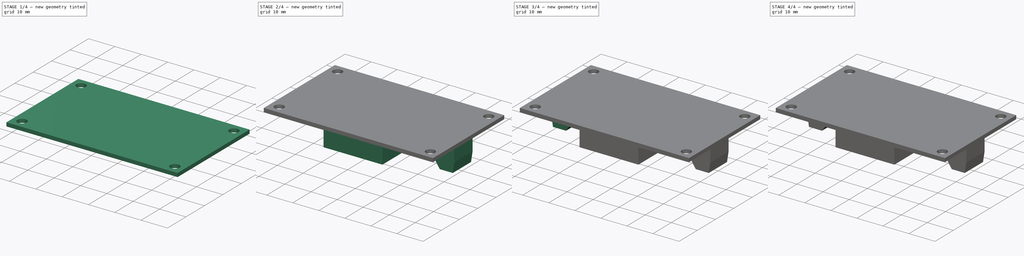
[diagram: build sequence overview — one tinted view per stage of 4, left to right]
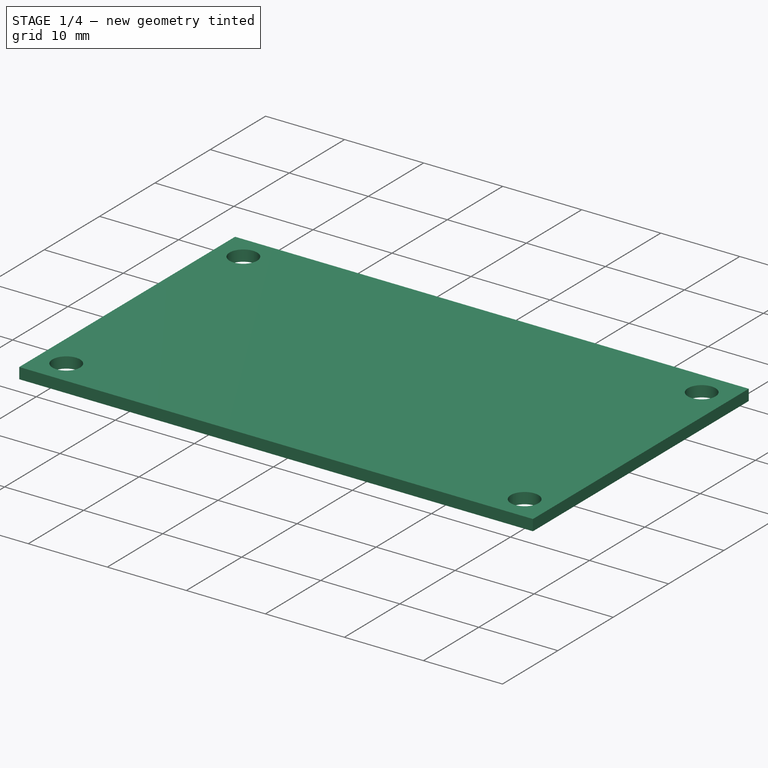
[diagram: stage 1 of 4 — iso view after this stage's code; geometry added in this stage tinted green]
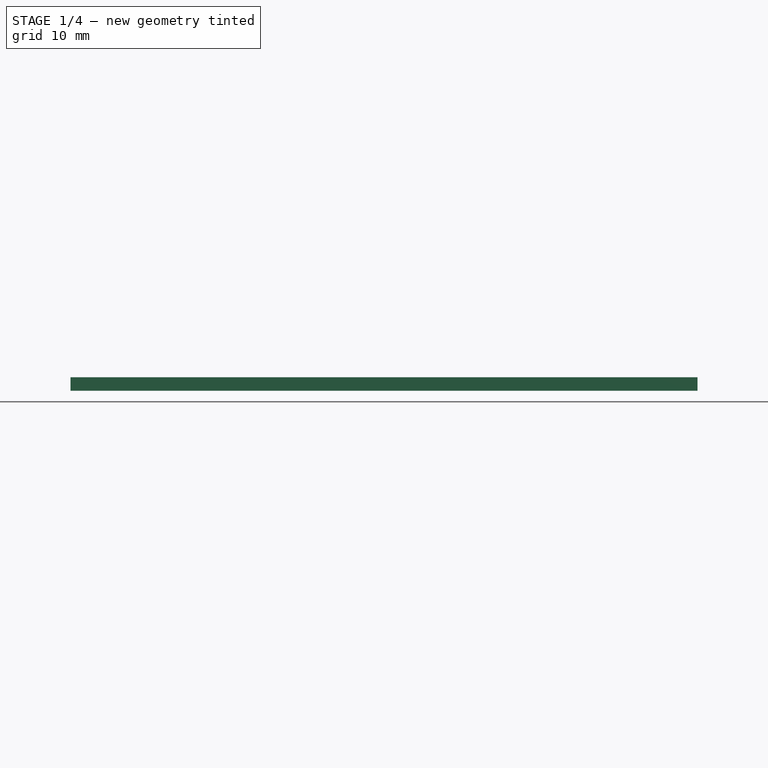
[diagram: stage 1 of 4 — front view after this stage's code; geometry added in this stage tinted green]
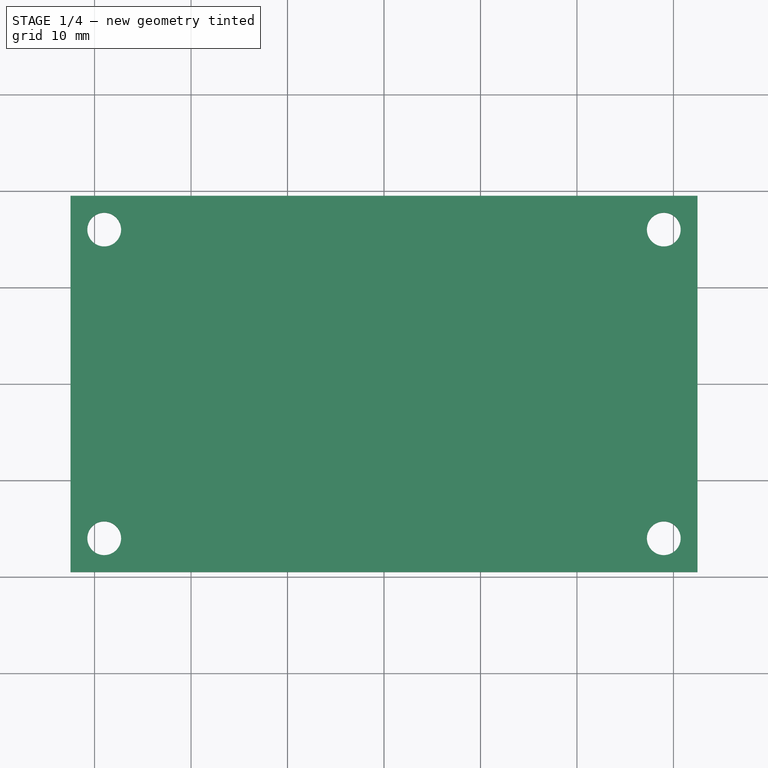
[diagram: stage 1 of 4 — top view after this stage's code; geometry added in this stage tinted green]
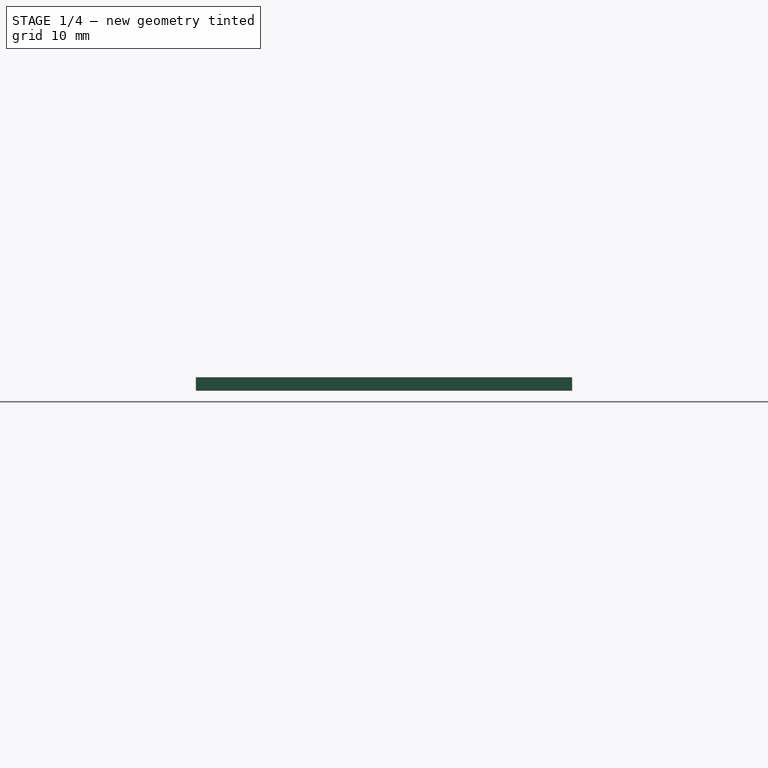
[diagram: stage 1 of 4 — right view after this stage's code; geometry added in this stage tinted green]
FCSTD DOCUMENT  (FreeCAD 0.20R29603 (Git))
Label: converter
License: All rights reserved
LicenseURL: http://en.wikipedia.org/wiki/All_rights_reserved
objects: Sketcher::SketchObject×9, PartDesign::Pad×7, PartDesign::Mirrored×3, PartDesign::Pocket×2, PartDesign::MultiTransform×1, PartDesign::Body×1
note: 32 computed .brp shape members not serialized (recipe doc carries the construction recipe); baked Part::Feature solids carry a one-line shape summary decoded from their .brp

FEATURE [Sketcher::SketchObject] Sketch
  FullyConstrained = true
  MapMode = 5
  Support = -> [XY_Plane]
  sketch-geometry (5):
    g0: LineSegment StartX=-32.5 StartY=-19.5 StartZ=0 EndX=-32.5 EndY=19.5 EndZ=0
    g1: LineSegment StartX=-32.5 StartY=19.5 StartZ=0 EndX=32.5 EndY=19.5 EndZ=0
    g2: LineSegment StartX=32.5 StartY=19.5 StartZ=0 EndX=32.5 EndY=-19.5 EndZ=0
    g3: LineSegment StartX=32.5 StartY=-19.5 StartZ=0 EndX=-32.5 EndY=-19.5 EndZ=0
    g4: GeomPoint X=0 Y=0 Z=0
  constraints (12):
    c: Coincident(g0,g1)
    c: Coincident(g1,g2)
    c: Coincident(g2,g3)
    c: Coincident(g3,g0)
    c: Horizontal(g1)
    c: Horizontal(g3)
    c: Vertical(g0)
    c: Vertical(g2)
    c: Symmetric(g1,g0,g4)
    c: Coincident(g4,g-1)
    c: DistanceY(g2,g2) = 39
    c: DistanceX(g1,g1) = 65
FEATURE [PartDesign::Pad] Pad
  Direction = (0,0,1)
  Length = 1.4
  Length2 = 10
  Profile = -> Sketch
  ReferenceAxis = -> Sketch [N_Axis]
  Type = 0
FEATURE [Sketcher::SketchObject] Sketch001
  FullyConstrained = true
  MapMode = 5
  Support = -> [XY_Plane]
  sketch-geometry (1):
    g0: Circle CenterX=29 CenterY=16 CenterZ=0 NormalX=0 NormalY=0 NormalZ=1 AngleXU=0 Radius=1.75
  constraints (3):
    c: DistanceY(g-1,g0) = 16
    c: DistanceX(g-1,g0) = 29
    c: Diameter(g0) = 3.5
FEATURE [PartDesign::Pocket] Pocket
  BaseFeature = -> Pad
  Direction = (0,0,-1)
  Length = 1
  Length2 = 5
  Profile = -> Sketch001
  ReferenceAxis = -> Sketch001 [N_Axis]
  Reversed = true
  Type = 1
FEATURE [PartDesign::Mirrored] Mirrored
  MirrorPlane = -> Sketch001 [V_Axis]
FEATURE [PartDesign::Mirrored] Mirrored001
  MirrorPlane = -> Sketch001 [H_Axis]
FEATURE [PartDesign::MultiTransform] MultiTransform
  BaseFeature = -> Pocket
  Originals = -> [Pocket]
  Transformations = -> [Mirrored,Mirrored001]
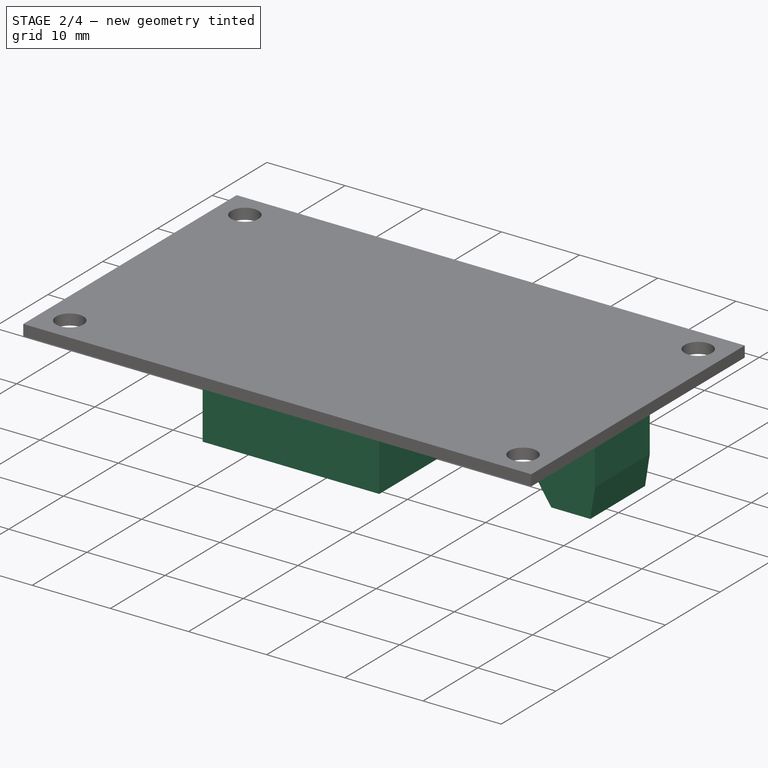
[diagram: stage 2 of 4 — iso view after this stage's code; geometry added in this stage tinted green]
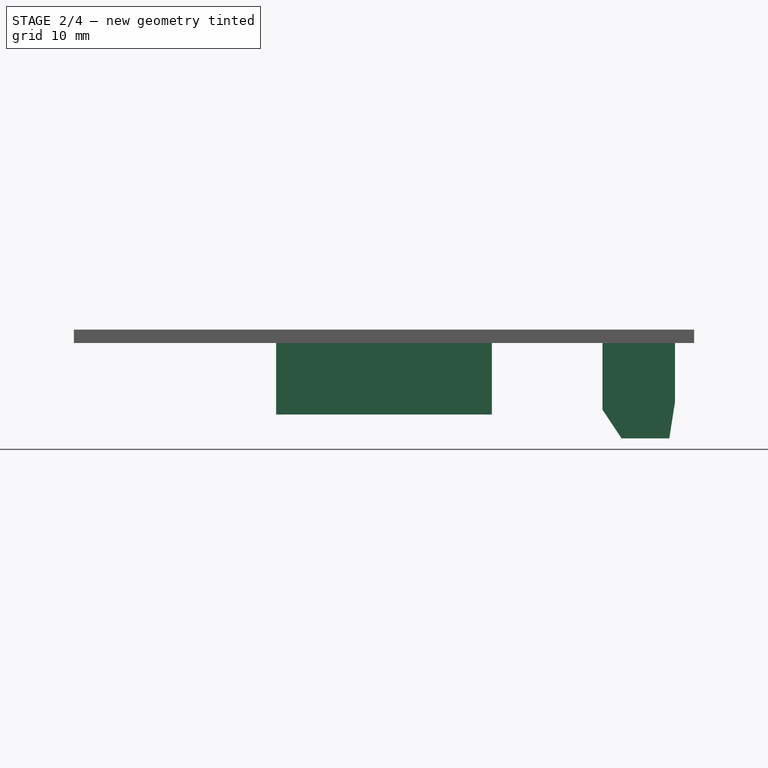
[diagram: stage 2 of 4 — front view after this stage's code; geometry added in this stage tinted green]
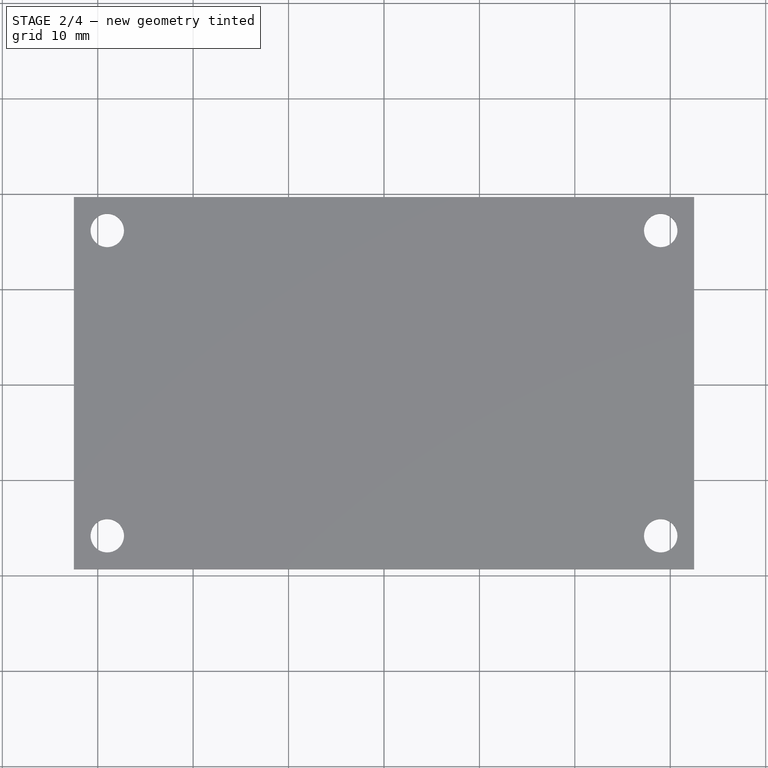
[diagram: stage 2 of 4 — top view after this stage's code; geometry added in this stage tinted green]
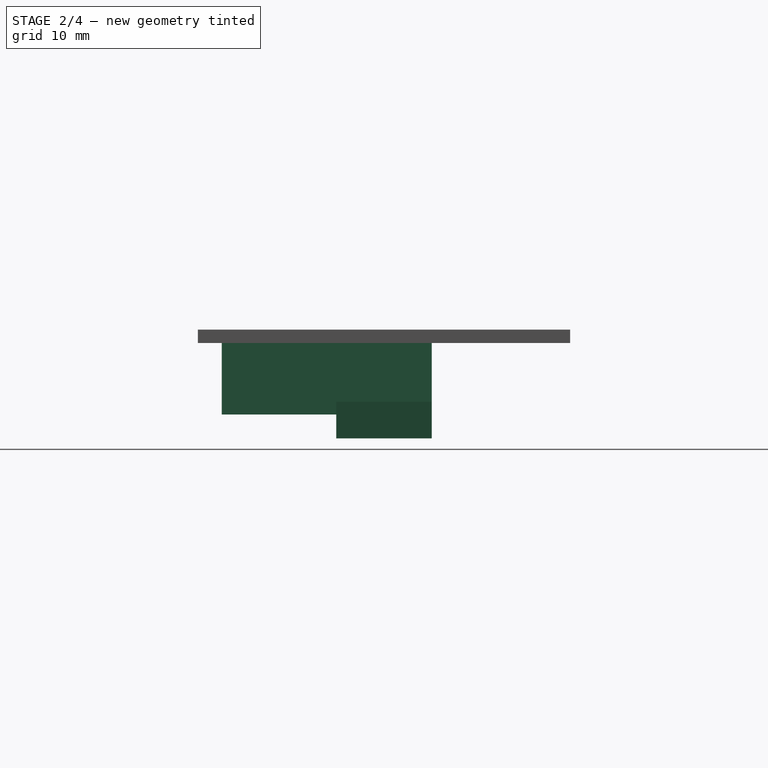
[diagram: stage 2 of 4 — right view after this stage's code; geometry added in this stage tinted green]
FEATURE [Sketcher::SketchObject] Sketch002
  FullyConstrained = true
  MapMode = 5
  Placement = pos=(0,0,0) rot=(0,1,0;3.14159rad)
  Support = -> [XY_Plane]
  sketch-geometry (5):
    g0: LineSegment StartX=-30.5 StartY=-5 StartZ=0 EndX=-30.5 EndY=5 EndZ=0
    g1: LineSegment StartX=-30.5 StartY=5 StartZ=0 EndX=-22.9 EndY=5 EndZ=0
    g2: LineSegment StartX=-22.9 StartY=5 StartZ=0 EndX=-22.9 EndY=-5 EndZ=0
    g3: LineSegment StartX=-22.9 StartY=-5 StartZ=0 EndX=-30.5 EndY=-5 EndZ=0
    g4: GeomPoint X=-26.7 Y=0 Z=0
  constraints (13):
    c: Coincident(g0,g1)
    c: Coincident(g1,g2)
    c: Coincident(g2,g3)
    c: Coincident(g3,g0)
    c: Horizontal(g1)
    c: Horizontal(g3)
    c: Vertical(g0)
    c: Vertical(g2)
    c: Symmetric(g1,g0,g4)
    c: PointOnObject(g4,g-1)
    c: DistanceY(g2,g2) = 10
    c: DistanceX(g1,g1) = 7.6
    c: DistanceX(g0,g-1) = 30.5
FEATURE [PartDesign::Pad] Pad001
  BaseFeature = -> MultiTransform
  Direction = (0,0,-1)
  Length = 10
  Length2 = 10
  Profile = -> Sketch002
  ReferenceAxis = -> Sketch002 [N_Axis]
  Type = 0
FEATURE [Sketcher::SketchObject] Sketch003
  FullyConstrained = false
  MapMode = 5
  Placement = pos=(0,0,0) rot=(1,0,0;1.5708rad)
  Support = -> [XZ_Plane]
  sketch-geometry (7):
    g0: LineSegment StartX=22.9 StartY=-7 StartZ=0 EndX=24.9 EndY=-10 EndZ=0
    g1: LineSegment StartX=22.9 StartY=-7 StartZ=0 EndX=22.9 EndY=-10 EndZ=0
    g2: LineSegment StartX=22.9 StartY=-10 StartZ=0 EndX=24.9 EndY=-10 EndZ=0
    g3: LineSegment StartX=24.9 StartY=-10 StartZ=0 EndX=29.9 EndY=-10 EndZ=0
    g4: LineSegment StartX=29.9 StartY=-10 StartZ=0 EndX=30.5 EndY=-6.15939 EndZ=0
    g5: LineSegment StartX=30.5 StartY=-6.15939 StartZ=0 EndX=30.5 EndY=-10 EndZ=0
    g6: LineSegment StartX=30.5 StartY=-10 StartZ=0 EndX=29.9 EndY=-10 EndZ=0
  constraints (19):
    c: DistanceY(g0,g0) = 3
    c: Coincident(g1,g0)
    c: Vertical(g1)
    c: Coincident(g2,g1)
    c: Coincident(g2,g0)
    c: Horizontal(g2)
    c: DistanceY(g1,g-1) = 10
    c: Coincident(g3,g0)
    c: Horizontal(g3)
    c: DistanceX(g3,g3) = 5
    c: DistanceX(g2,g2) = 2
    c: DistanceX(g-1,g1) = 22.9
    c: Coincident(g4,g3)
    c: Coincident(g5,g4)
    c: Vertical(g5)
    c: Coincident(g6,g5)
    c: Coincident(g6,g4)
    c: Horizontal(g6)
    c: DistanceX(g1,g5) = 7.6
FEATURE [PartDesign::Pocket] Pocket001
  BaseFeature = -> Pad001
  Direction = (0,1,2e-16)
  Length = 10
  Length2 = 5
  Midplane = true
  Profile = -> Sketch003
  ReferenceAxis = -> Sketch003 [N_Axis]
  Type = 0
FEATURE [Sketcher::SketchObject] Sketch004
  FullyConstrained = true
  MapMode = 5
  Placement = pos=(0,0,0) rot=(0,1,0;3.14159rad)
  Support = -> [XY_Plane]
  sketch-geometry (5):
    g0: LineSegment StartX=-11.3 StartY=-3 StartZ=0 EndX=-11.3 EndY=-17 EndZ=0
    g1: LineSegment StartX=-11.3 StartY=-17 StartZ=0 EndX=11.3 EndY=-17 EndZ=0
    g2: LineSegment StartX=11.3 StartY=-17 StartZ=0 EndX=11.3 EndY=-3 EndZ=0
    g3: LineSegment StartX=11.3 StartY=-3 StartZ=0 EndX=-11.3 EndY=-3 EndZ=0
    g4: GeomPoint X=0 Y=-10 Z=0
  constraints (13):
    c: Coincident(g0,g1)
    c: Coincident(g1,g2)
    c: Coincident(g2,g3)
    c: Coincident(g3,g0)
    c: Horizontal(g1)
    c: Horizontal(g3)
    c: Vertical(g0)
    c: Vertical(g2)
    c: Symmetric(g1,g0,g4)
    c: PointOnObject(g4,g-2)
    c: DistanceX(g3,g3) = 22.6
    c: DistanceY(g0,g0) = 14
    c: DistanceY(g1,g-1) = 17
FEATURE [PartDesign::Pad] Pad002
  BaseFeature = -> Pocket001
  Direction = (0,0,-1)
  Length = 7.5
  Length2 = 10
  Profile = -> Sketch004
  ReferenceAxis = -> Sketch004 [N_Axis]
  Type = 0
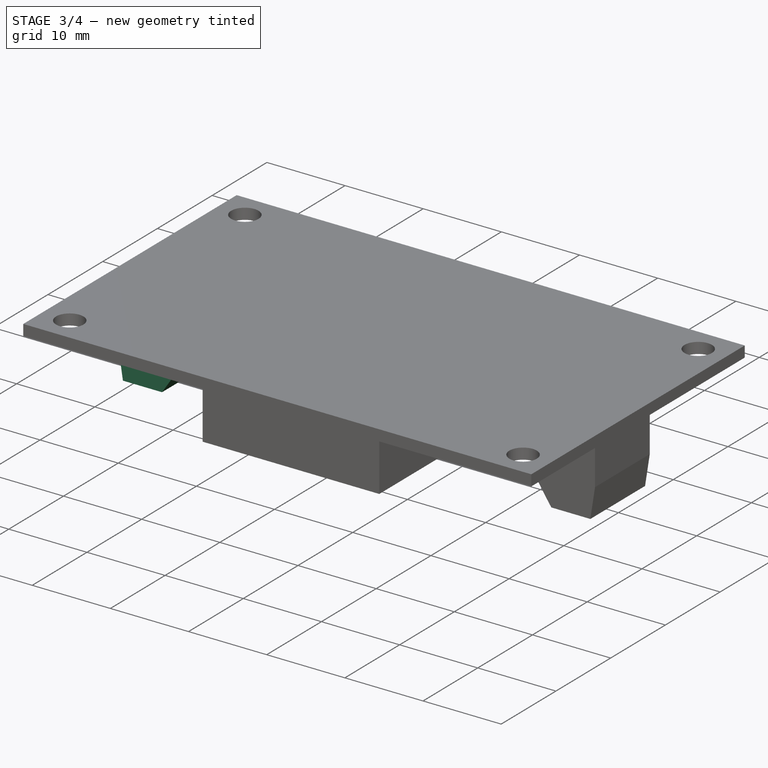
[diagram: stage 3 of 4 — iso view after this stage's code; geometry added in this stage tinted green]
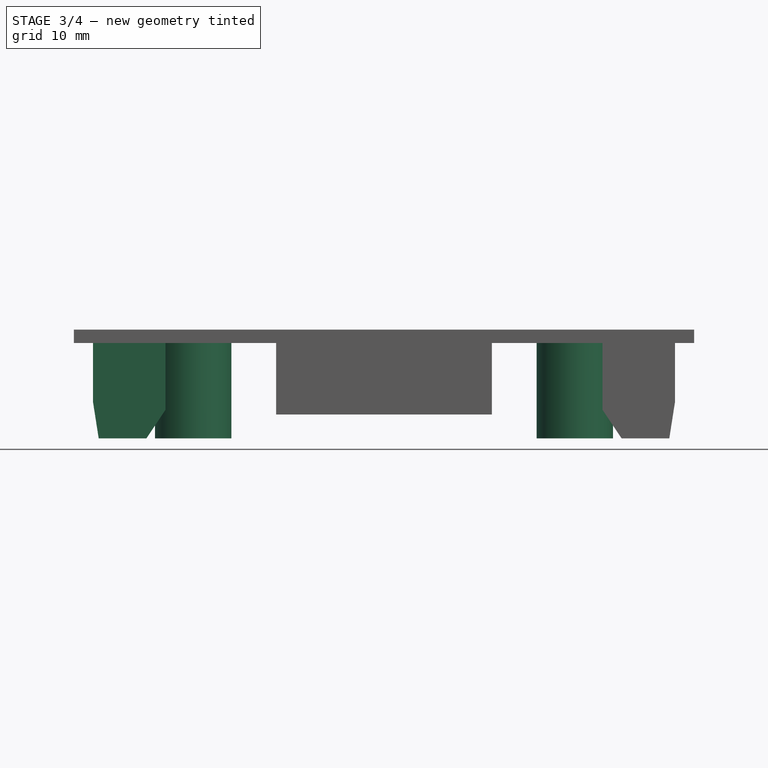
[diagram: stage 3 of 4 — front view after this stage's code; geometry added in this stage tinted green]
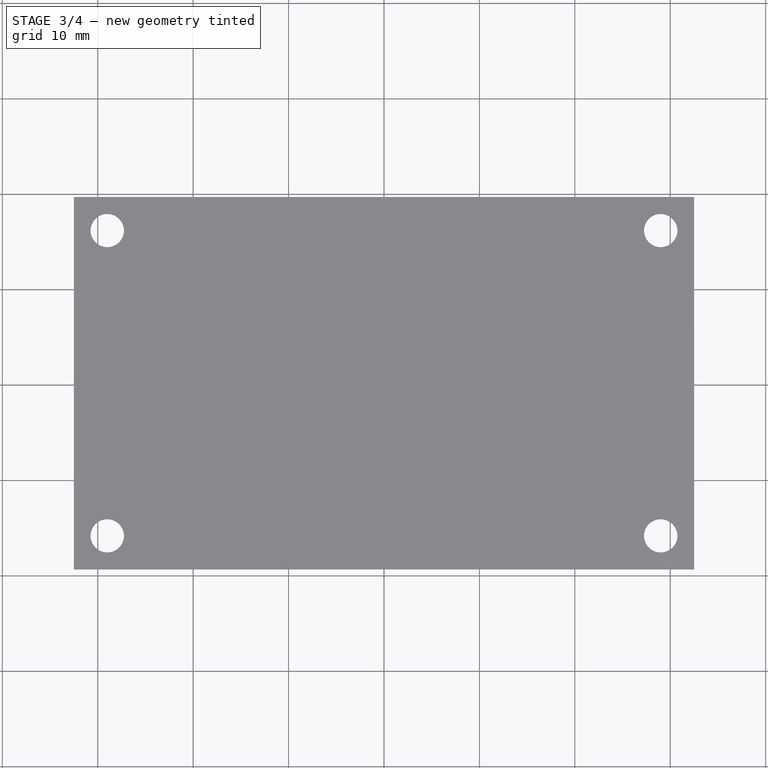
[diagram: stage 3 of 4 — top view after this stage's code; geometry added in this stage tinted green]
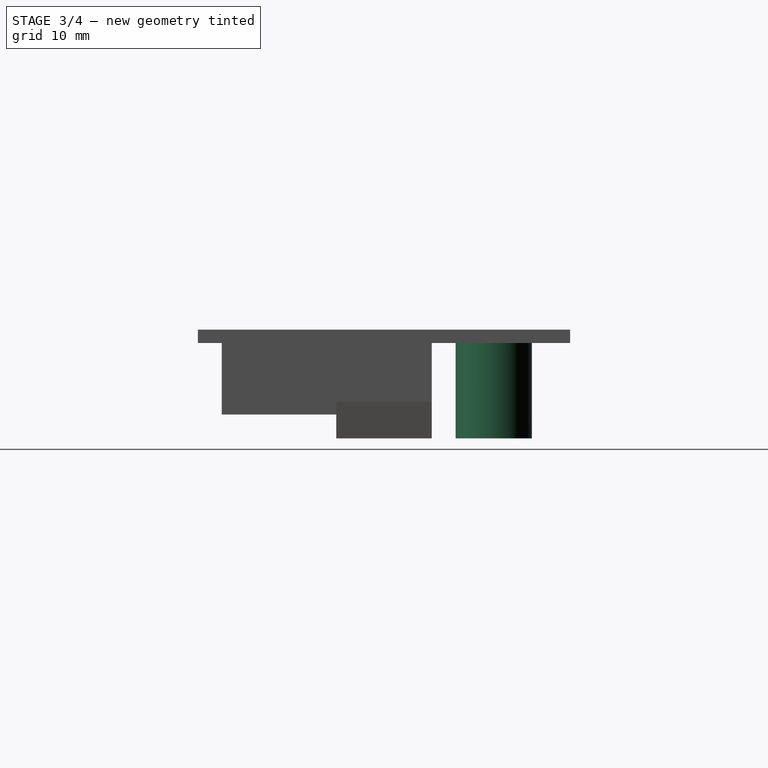
[diagram: stage 3 of 4 — right view after this stage's code; geometry added in this stage tinted green]
FEATURE [Sketcher::SketchObject] Sketch005
  FullyConstrained = true
  MapMode = 5
  Placement = pos=(0,0,0) rot=(0,1,0;3.14159rad)
  Support = -> [XY_Plane]
  sketch-geometry (1):
    g0: Circle CenterX=-20 CenterY=11.5 CenterZ=0 NormalX=0 NormalY=0 NormalZ=1 AngleXU=0 Radius=4
  constraints (3):
    c: Diameter(g0) = 8
    c: DistanceY(g-1,g0) = 11.5
    c: DistanceX(g0,g-1) = 20
FEATURE [PartDesign::Pad] Pad003
  BaseFeature = -> Pad002
  Direction = (0,0,-1)
  Length = 10
  Length2 = 10
  Profile = -> Sketch005
  ReferenceAxis = -> Sketch005 [N_Axis]
  Type = 0
FEATURE [PartDesign::Mirrored] Mirrored002
  BaseFeature = -> Pad003
  MirrorPlane = -> Sketch002 [V_Axis]
  Originals = -> [Pad001,Pocket001,Pad003]
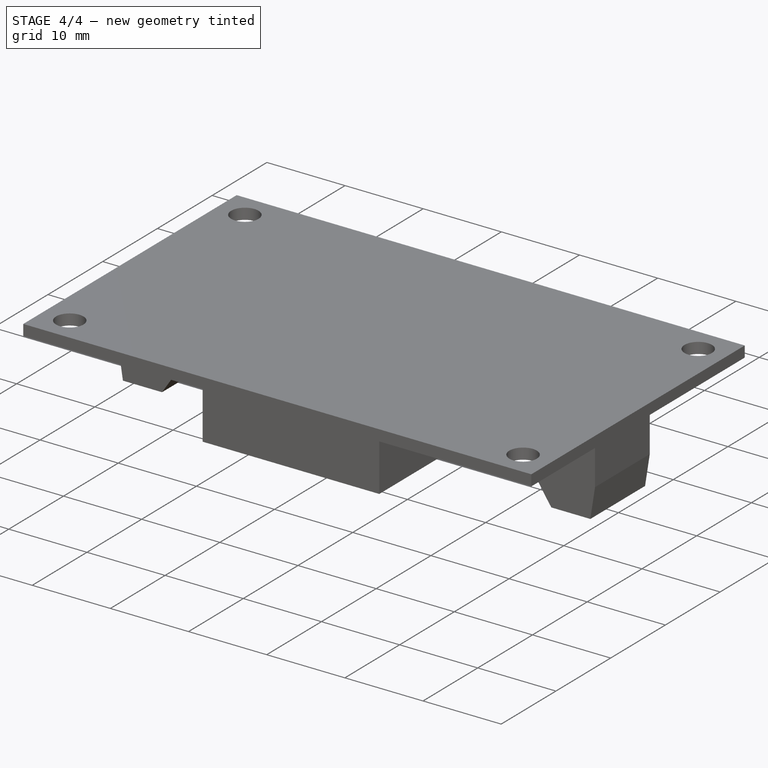
[diagram: stage 4 of 4 — iso view after this stage's code; geometry added in this stage tinted green]
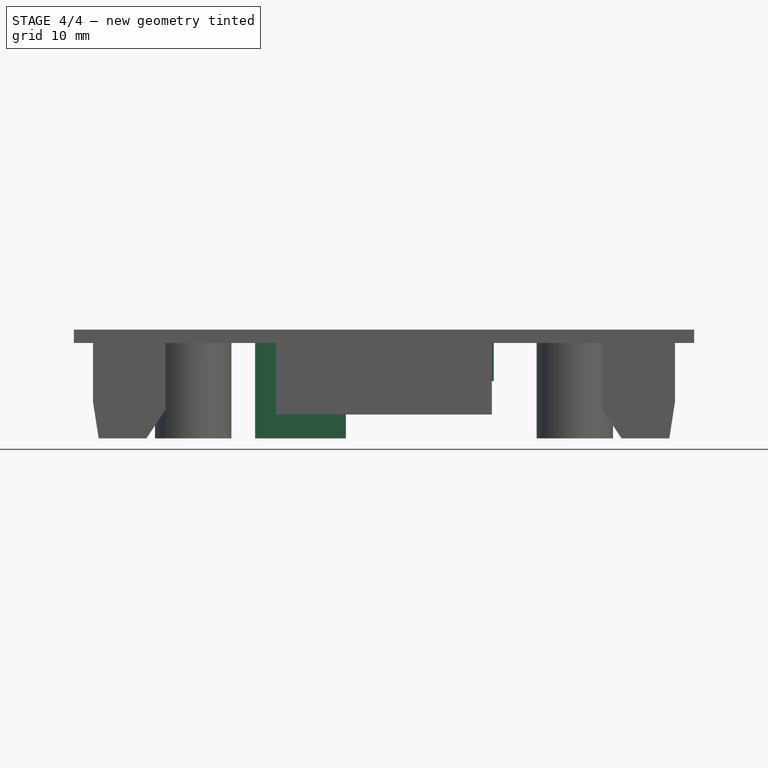
[diagram: stage 4 of 4 — front view after this stage's code; geometry added in this stage tinted green]
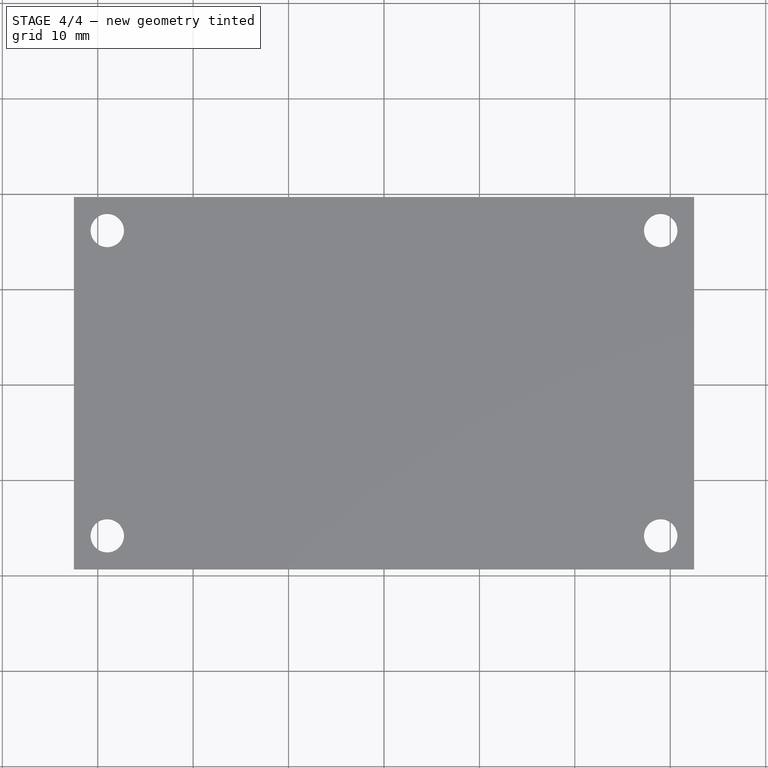
[diagram: stage 4 of 4 — top view after this stage's code; geometry added in this stage tinted green]
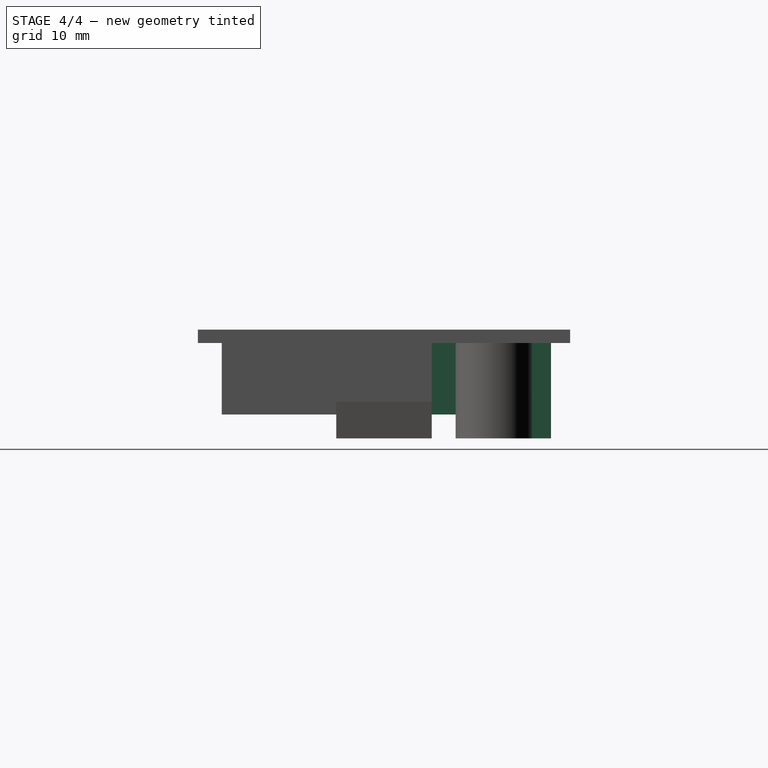
[diagram: stage 4 of 4 — right view after this stage's code; geometry added in this stage tinted green]
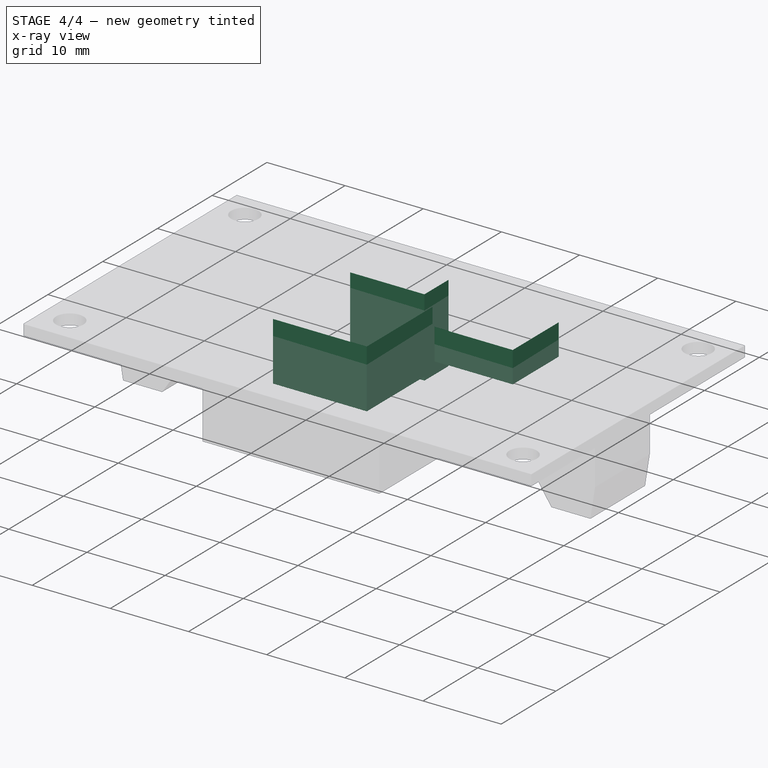
[diagram: stage 4 of 4 — x-ray composite at the iso view; earlier geometry ghosted, this stage's added geometry solid]
FEATURE [Sketcher::SketchObject] Sketch006
  FullyConstrained = true
  MapMode = 5
  Placement = pos=(0,0,0) rot=(0,1,0;3.14159rad)
  Support = -> [XY_Plane]
  sketch-geometry (5):
    g0: LineSegment StartX=1.5 StartY=-1 StartZ=0 EndX=1.5 EndY=11 EndZ=0
    g1: LineSegment StartX=1.5 StartY=11 StartZ=0 EndX=13.5 EndY=11 EndZ=0
    g2: LineSegment StartX=13.5 StartY=11 StartZ=0 EndX=13.5 EndY=-1 EndZ=0
    g3: LineSegment StartX=13.5 StartY=-1 StartZ=0 EndX=1.5 EndY=-1 EndZ=0
    g4: GeomPoint X=7.5 Y=5 Z=0
  constraints (13):
    c: Coincident(g0,g1)
    c: Coincident(g1,g2)
    c: Coincident(g2,g3)
    c: Coincident(g3,g0)
    c: Horizontal(g1)
    c: Horizontal(g3)
    c: Vertical(g0)
    c: Vertical(g2)
    c: Symmetric(g1,g0,g4)
    c: DistanceX(g1,g1) = 12
    c: DistanceY(g2,g2) = 12
    c: DistanceY(g0,g-1) = 1
    c: DistanceX(g-1,g1) = 13.5
FEATURE [PartDesign::Pad] Pad004
  BaseFeature = -> Mirrored002
  Direction = (0,0,-1)
  Length = 7.5
  Length2 = 10
  Profile = -> Sketch006
  ReferenceAxis = -> Sketch006 [N_Axis]
  Type = 0
FEATURE [Sketcher::SketchObject] Sketch007
  FullyConstrained = true
  MapMode = 5
  Placement = pos=(0,0,0) rot=(0,1,0;3.14159rad)
  Support = -> [XY_Plane]
  sketch-geometry (5):
    g0: LineSegment StartX=4 StartY=17.5 StartZ=0 EndX=4 EndY=13.1 EndZ=0
    g1: LineSegment StartX=4 StartY=13.1 StartZ=0 EndX=13.5 EndY=13.1 EndZ=0
    g2: LineSegment StartX=13.5 StartY=13.1 StartZ=0 EndX=13.5 EndY=17.5 EndZ=0
    g3: LineSegment StartX=13.5 StartY=17.5 StartZ=0 EndX=4 EndY=17.5 EndZ=0
    g4: GeomPoint X=8.75 Y=15.3 Z=0
  constraints (13):
    c: Coincident(g0,g1)
    c: Coincident(g1,g2)
    c: Coincident(g2,g3)
    c: Coincident(g3,g0)
    c: Horizontal(g1)
    c: Horizontal(g3)
    c: Vertical(g0)
    c: Vertical(g2)
    c: Symmetric(g1,g0,g4)
    c: DistanceY(g2,g2) = 4.4
    c: DistanceX(g3,g3) = 9.5
    c: DistanceX(g-1,g1) = 13.5
    c: DistanceY(g-1,g0) = 17.5
FEATURE [PartDesign::Pad] Pad005
  BaseFeature = -> Pad004
  Direction = (0,0,-1)
  Length = 10
  Length2 = 10
  Profile = -> Sketch007
  ReferenceAxis = -> Sketch007 [N_Axis]
  Type = 0
FEATURE [Sketcher::SketchObject] Sketch008
  FullyConstrained = true
  MapMode = 5
  Placement = pos=(0,0,0) rot=(0,1,0;3.14159rad)
  Support = -> [XY_Plane]
  sketch-geometry (5):
    g0: LineSegment StartX=-11.5 StartY=15.5 StartZ=0 EndX=-11.5 EndY=7.1 EndZ=0
    g1: LineSegment StartX=-11.5 StartY=7.1 StartZ=0 EndX=-1.5 EndY=7.1 EndZ=0
    g2: LineSegment StartX=-1.5 StartY=7.1 StartZ=0 EndX=-1.5 EndY=15.5 EndZ=0
    g3: LineSegment StartX=-1.5 StartY=15.5 StartZ=0 EndX=-11.5 EndY=15.5 EndZ=0
    g4: GeomPoint X=-6.5 Y=11.3 Z=0
  constraints (13):
    c: Coincident(g0,g1)
    c: Coincident(g1,g2)
    c: Coincident(g2,g3)
    c: Coincident(g3,g0)
    c: Horizontal(g1)
    c: Horizontal(g3)
    c: Vertical(g0)
    c: Vertical(g2)
    c: Symmetric(g1,g0,g4)
    c: DistanceY(g0,g0) = 8.4
    c: DistanceX(g3,g3) = 10
    c: DistanceX(g0,g-1) = 11.5
    c: DistanceY(g-1,g2) = 15.5
FEATURE [PartDesign::Pad] Pad006
  BaseFeature = -> Pad005
  Direction = (0,0,-1)
  Length = 4
  Length2 = 10
  Profile = -> Sketch008
  ReferenceAxis = -> Sketch008 [N_Axis]
  Type = 0
FEATURE [PartDesign::Body] Body
  Group = -> [Sketch,Pad,Sketch001,Pocket,MultiTransform,Mirrored,Mirrored001,Sketch002,Pad001,Sketch003,Pocket001,Sketch004,Pad002,Sketch005,Pad003,Mirrored002,Sketch006,Pad004,Sketch007,Pad005,Sketch008,Pad006]
  Origin = -> Origin
  Tip = -> Pad006
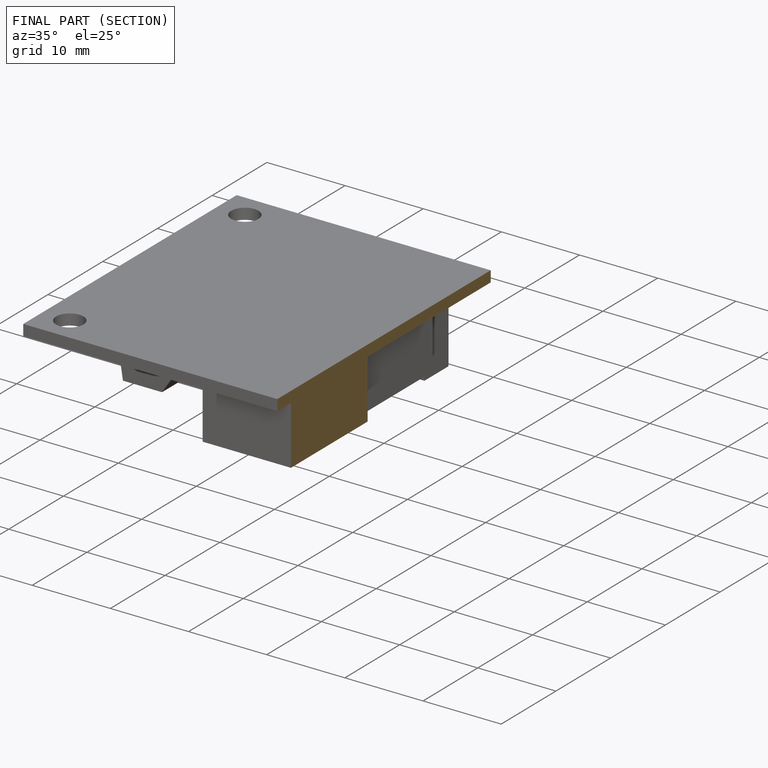
[diagram: finished part — half-section view (interior)]
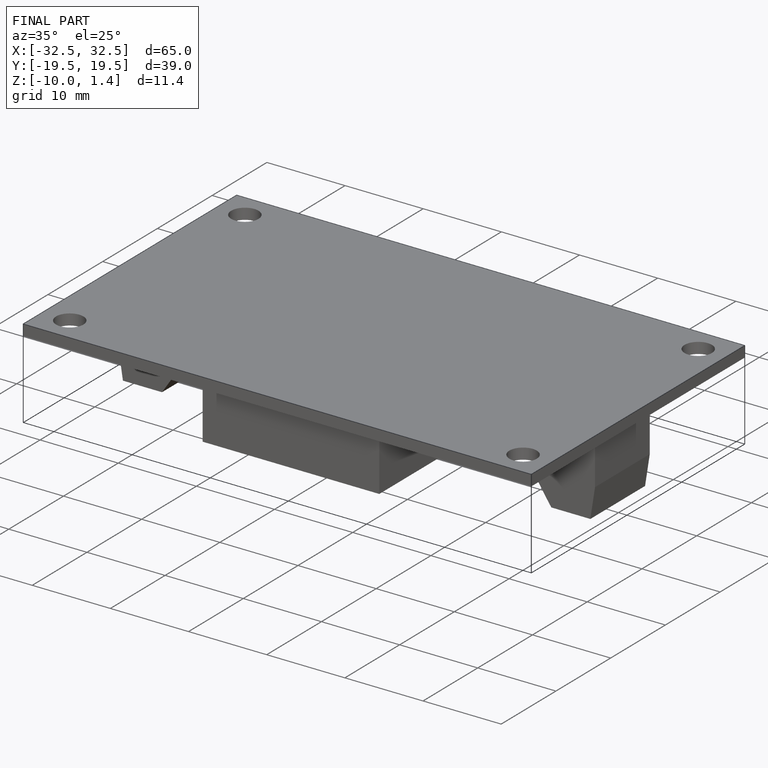
[diagram: finished part — iso view with bounding-box wireframe]
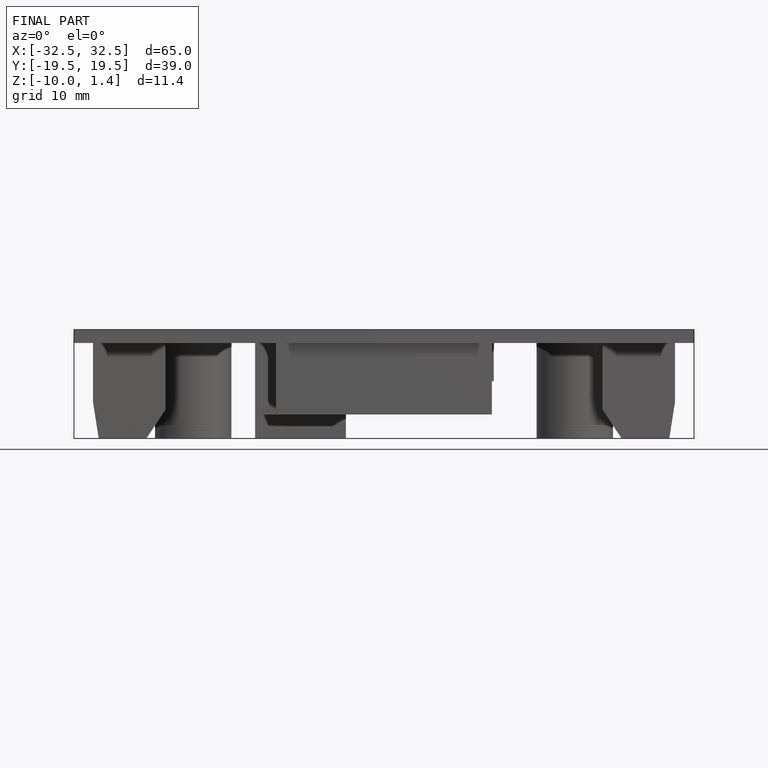
[diagram: finished part — front view with bounding-box wireframe]
